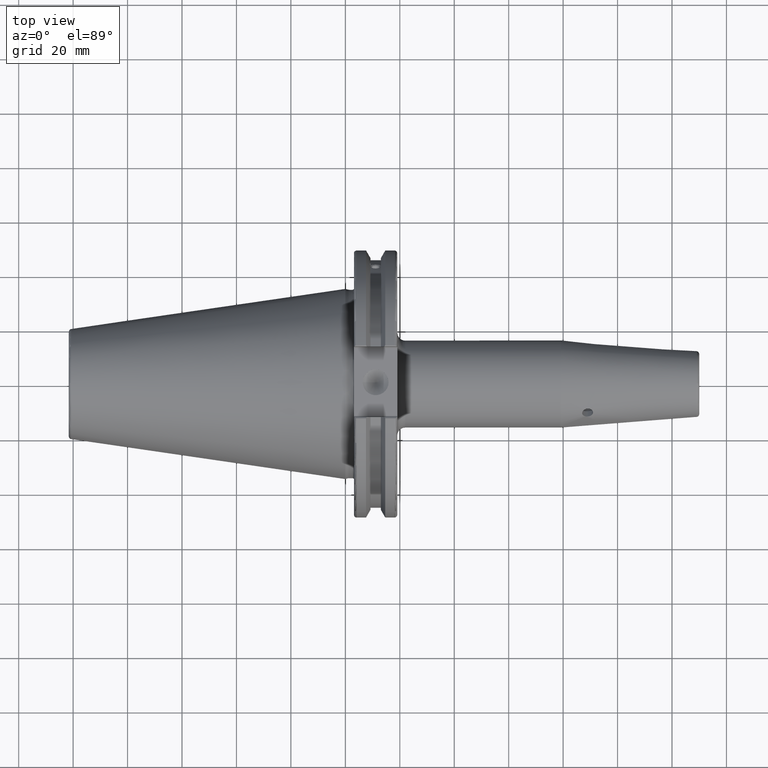
[diagram: clean part render]
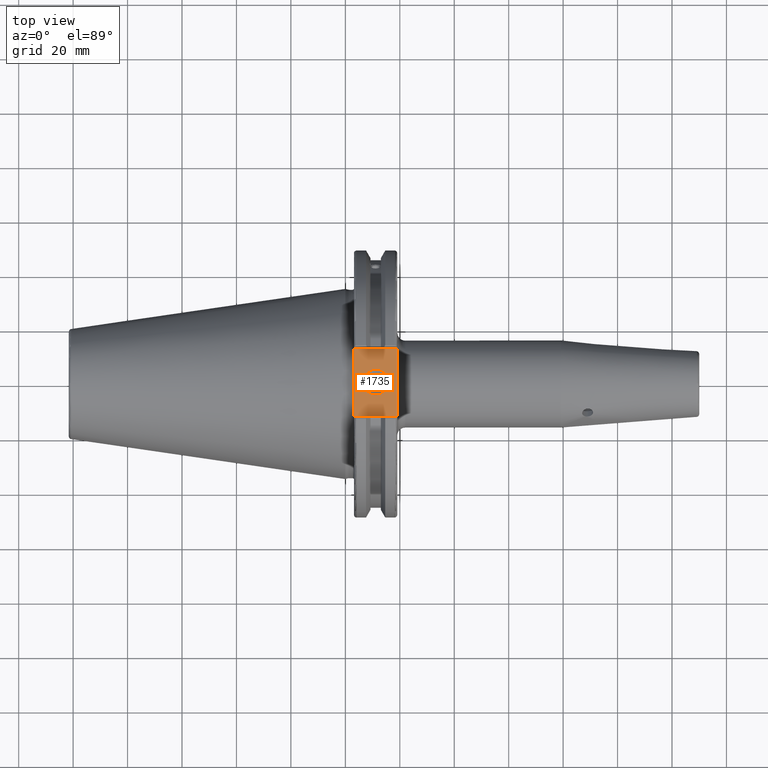
[diagram: same view with one face highlighted and labeled with its STEP entity id]
A machine part, top view. The second image highlights one B-rep face of the part: STEP entity #1735.
In plain terms, the highlighted planar face has unit normal (0, 0, 1).
Its self-contained STEP definition (entity closure, byte-faithful):
#54=FACE_BOUND('',#404,.T.);
#89=PLANE('',#1933);
#190=CIRCLE('',#1925,4.7625);
#285=FACE_OUTER_BOUND('',#403,.T.);
#403=EDGE_LOOP('',(#1577,#1578,#1579,#1580));
#404=EDGE_LOOP('',(#1581));
#480=LINE('',#2706,#583);
#524=LINE('',#3305,#627);
#552=LINE('',#3534,#655);
#554=LINE('',#3537,#657);
#583=VECTOR('',#2033,10.);
#627=VECTOR('',#2231,10.);
#655=VECTOR('',#2325,10.);
#657=VECTOR('',#2329,10.);
#710=VERTEX_POINT('',#2703);
#711=VERTEX_POINT('',#2705);
#798=VERTEX_POINT('',#3302);
#799=VERTEX_POINT('',#3304);
#845=VERTEX_POINT('',#3573);
#896=EDGE_CURVE('',#710,#711,#480,.T.);
#1011=EDGE_CURVE('',#798,#799,#524,.T.);
#1074=EDGE_CURVE('',#711,#798,#552,.T.);
#1076=EDGE_CURVE('',#799,#710,#554,.T.);
#1091=EDGE_CURVE('',#845,#845,#190,.T.);
#1577=ORIENTED_EDGE('',*,*,#1074,.F.);
#1578=ORIENTED_EDGE('',*,*,#896,.F.);
#1579=ORIENTED_EDGE('',*,*,#1076,.F.);
#1580=ORIENTED_EDGE('',*,*,#1011,.F.);
#1581=ORIENTED_EDGE('',*,*,#1091,.T.);
#1735=ADVANCED_FACE('',(#285,#54),#89,.T.);
#1925=AXIS2_PLACEMENT_3D('',#3574,#2364,#2365);
#1933=AXIS2_PLACEMENT_3D('',#3583,#2381,#2382);
#2033=DIRECTION('',(0.,-1.,0.));
#2231=DIRECTION('',(0.,1.,0.));
#2325=DIRECTION('',(-1.,1.31581988103722E-16,0.));
#2329=DIRECTION('',(1.,0.,0.));
#2364=DIRECTION('center_axis',(0.,0.,-1.));
#2365=DIRECTION('ref_axis',(1.,0.,0.));
#2381=DIRECTION('center_axis',(0.,0.,1.));
#2382=DIRECTION('ref_axis',(1.,0.,0.));
#2703=CARTESIAN_POINT('',(19.05,12.45,37.719));
#2705=CARTESIAN_POINT('',(19.05,-12.45,37.719));
#2706=CARTESIAN_POINT('',(19.05,0.,37.719));
#3302=CARTESIAN_POINT('',(3.175,-12.45,37.719));
#3304=CARTESIAN_POINT('',(3.175,12.45,37.719));
#3305=CARTESIAN_POINT('',(3.175,24.60625,37.719));
#3534=CARTESIAN_POINT('',(10.63125,-12.45,37.719));
#3537=CARTESIAN_POINT('',(19.06875,12.45,37.719));
#3573=CARTESIAN_POINT('',(6.3716,-5.83238038093927E-16,37.719));
#3574=CARTESIAN_POINT('Origin',(11.1341,0.,37.719));
#3583=CARTESIAN_POINT('Origin',(18.0875,0.,37.719));